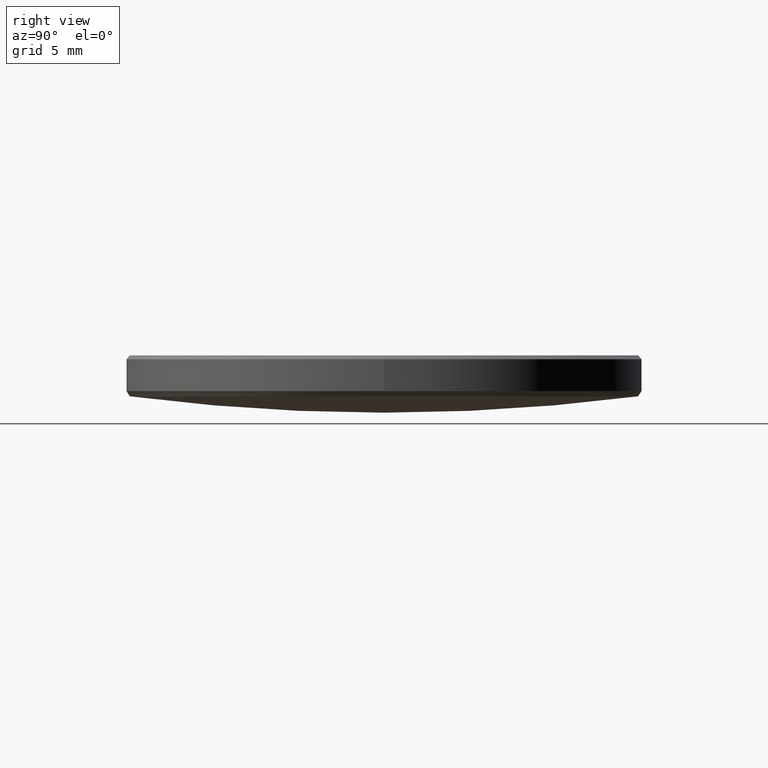
[diagram: clean part render]
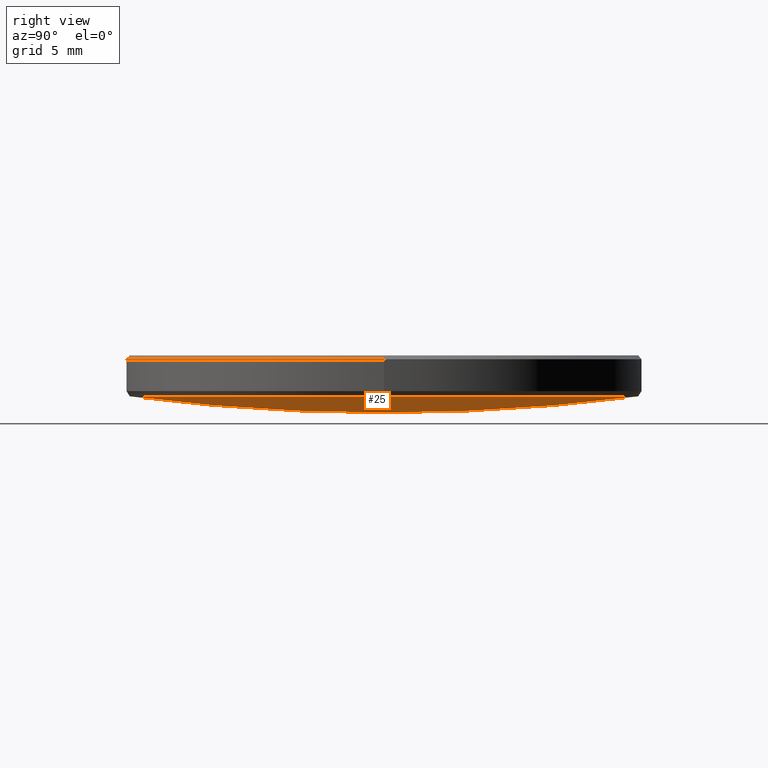
[diagram: same view with one face highlighted and labeled with its STEP entity id]
A machine part, right view. The second image highlights one B-rep face of the part: STEP entity #25.
In plain terms, the highlighted spherical surface has radius 97.61 mm.
Its self-contained STEP definition (entity closure, byte-faithful):
#1 = DIRECTION ( 'NONE',  ( 0.000000000000000000, 0.000000000000000000, -1.000000000000000000 ) ) ;
#11 = VERTEX_POINT ( 'NONE', #67 ) ;
#13 = DIRECTION ( 'NONE',  ( 0.000000000000000000, 0.000000000000000000, -1.000000000000000000 ) ) ;
#14 = AXIS2_PLACEMENT_3D ( 'NONE', #222, #47, #303 ) ;
#20 = CIRCLE ( 'NONE', #57, 12.50187621270549165 ) ;
#24 = SPHERICAL_SURFACE ( 'NONE', #14, 97.60999999999999943 ) ;
#25 = ADVANCED_FACE ( 'NONE', ( #141 ), #24, .T. ) ;
#45 = EDGE_CURVE ( 'NONE', #236, #11, #20, .T. ) ;
#46 = AXIS2_PLACEMENT_3D ( 'NONE', #128, #63, #266 ) ;
#47 = DIRECTION ( 'NONE',  ( -1.000000000000000000, 0.000000000000000000, 0.000000000000000000 ) ) ;
#57 = AXIS2_PLACEMENT_3D ( 'NONE', #271, #13, #261 ) ;
#63 = DIRECTION ( 'NONE',  ( -1.000000000000000000, 1.224646799147353207E-16, 0.000000000000000000 ) ) ;
#67 = CARTESIAN_POINT ( 'NONE',  ( 12.50187621270549165, 0.000000000000000000, 3.974207420987641015 ) ) ;
#74 = CIRCLE ( 'NONE', #99, 12.50187621270549165 ) ;
#85 = ORIENTED_EDGE ( 'NONE', *, *, #132, .T. ) ;
#99 = AXIS2_PLACEMENT_3D ( 'NONE', #307, #1, #284 ) ;
#105 = VERTEX_POINT ( 'NONE', #311 ) ;
#128 = CARTESIAN_POINT ( 'NONE',  ( 0.000000000000000000, 0.000000000000000000, 100.7802774329563533 ) ) ;
#132 = EDGE_CURVE ( 'NONE', #11, #235, #74, .T. ) ;
#139 = CARTESIAN_POINT ( 'NONE',  ( 0.000000000000000000, 0.000000000000000000, 100.7802774329563533 ) ) ;
#141 = FACE_OUTER_BOUND ( 'NONE', #312, .T. ) ;
#147 = EDGE_CURVE ( 'NONE', #105, #235, #188, .T. ) ;
#168 = AXIS2_PLACEMENT_3D ( 'NONE', #139, #246, #326 ) ;
#188 = CIRCLE ( 'NONE', #46, 97.60999999999999943 ) ;
#216 = ORIENTED_EDGE ( 'NONE', *, *, #45, .T. ) ;
#222 = CARTESIAN_POINT ( 'NONE',  ( 0.000000000000000000, 0.000000000000000000, 100.7802774329563533 ) ) ;
#235 = VERTEX_POINT ( 'NONE', #325 ) ;
#236 = VERTEX_POINT ( 'NONE', #299 ) ;
#240 = EDGE_CURVE ( 'NONE', #105, #236, #318, .T. ) ;
#246 = DIRECTION ( 'NONE',  ( 1.000000000000000000, -0.000000000000000000, 0.000000000000000000 ) ) ;
#256 = ORIENTED_EDGE ( 'NONE', *, *, #147, .F. ) ;
#261 = DIRECTION ( 'NONE',  ( 1.000000000000000000, 0.000000000000000000, 0.000000000000000000 ) ) ;
#266 = DIRECTION ( 'NONE',  ( -1.224646799147353207E-16, -1.000000000000000000, 0.000000000000000000 ) ) ;
#271 = CARTESIAN_POINT ( 'NONE',  ( 0.000000000000000000, 0.000000000000000000, 3.974207420987641015 ) ) ;
#283 = ORIENTED_EDGE ( 'NONE', *, *, #240, .T. ) ;
#284 = DIRECTION ( 'NONE',  ( 1.000000000000000000, 0.000000000000000000, 0.000000000000000000 ) ) ;
#299 = CARTESIAN_POINT ( 'NONE',  ( 0.000000000000000000, 12.50187621270551297, 3.974207420987641015 ) ) ;
#303 = DIRECTION ( 'NONE',  ( 0.000000000000000000, 1.000000000000000000, 0.000000000000000000 ) ) ;
#307 = CARTESIAN_POINT ( 'NONE',  ( 0.000000000000000000, 0.000000000000000000, 3.974207420987641015 ) ) ;
#311 = CARTESIAN_POINT ( 'NONE',  ( 0.000000000000000000, 5.976888703238657615E-15, 3.170277432956350339 ) ) ;
#312 = EDGE_LOOP ( 'NONE', ( #256, #283, #216, #85 ) ) ;
#318 = CIRCLE ( 'NONE', #168, 97.60999999999999943 ) ;
#325 = CARTESIAN_POINT ( 'NONE',  ( -1.531038268722624004E-15, -12.50187621270551297, 3.974207420987641015 ) ) ;
#326 = DIRECTION ( 'NONE',  ( 0.000000000000000000, 0.000000000000000000, -1.000000000000000000 ) ) ;